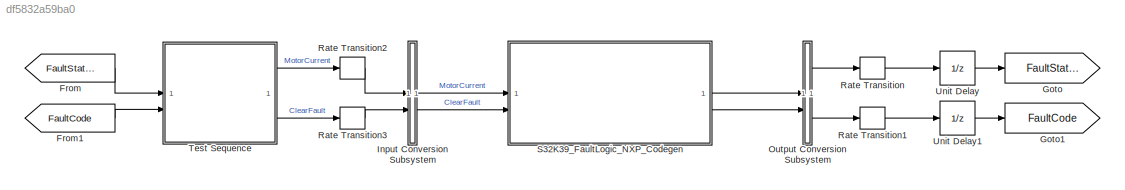
MODEL slx_df5832a59ba0
KIND model
CONFIG AbsTol = auto
CONFIG EnableMultiTasking = off
CONFIG FixedStep = 1
CONFIG MaxStep = auto
CONFIG MinStep = auto
CONFIG RelTol = 1e-3
CONFIG SampleTimeConstraint = Unconstrained
CONFIG SolverName = FixedStepAuto
CONFIG StartTime = 0.0
CONFIG StopTime = 15
BLOCK [From] From
  GotoTag = FaultStatus
BLOCK [From] From1
  GotoTag = FaultCode
BLOCK [Goto] Goto
  GotoTag = FaultStatus
BLOCK [Goto] Goto1
  GotoTag = FaultCode
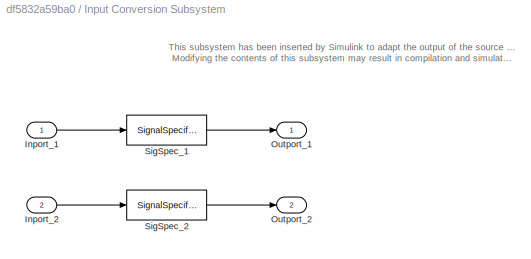
BLOCK [SubSystem] Input Conversion Subsystem
  AttributesFormatString = %<Description>
  Description = Signal spec.\nand routing
  Permissions = ReadOnly
  PermitHierarchicalResolution = ExplicitOnly
  Tag = __SLT_ICS__
  TreatAsGroupedWhenPropagatingVariantConditions = off
  UserDataPersistent = on
BLOCK [Inport] Input Conversion Subsystem/Inport_1
BLOCK [Inport] Input Conversion Subsystem/Inport_2
  Port = 2
BLOCK [Outport] Input Conversion Subsystem/Outport_1
BLOCK [Outport] Input Conversion Subsystem/Outport_2
  Port = 2
BLOCK [SignalSpecification] Input Conversion Subsystem/SigSpec_1
  Dimensions = [1]
  OutDataTypeStr = single
  SampleTime = [0, 0]
  SignalType = real
  VarSizeSig = No
BLOCK [SignalSpecification] Input Conversion Subsystem/SigSpec_2
  Dimensions = [1]
  OutDataTypeStr = boolean
  SampleTime = [0, 0]
  SignalType = real
  VarSizeSig = No
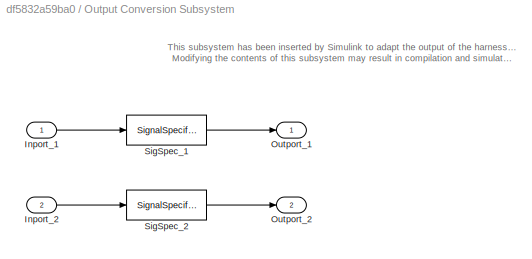
BLOCK [SubSystem] Output Conversion Subsystem
  AttributesFormatString = %<Description>
  Description = Signal spec.\nand routing
  Permissions = ReadOnly
  PermitHierarchicalResolution = ExplicitOnly
  Tag = __SLT_OCS__
  TreatAsGroupedWhenPropagatingVariantConditions = off
  UserDataPersistent = on
BLOCK [Inport] Output Conversion Subsystem/Inport_1
BLOCK [Inport] Output Conversion Subsystem/Inport_2
  Port = 2
BLOCK [Outport] Output Conversion Subsystem/Outport_1
BLOCK [Outport] Output Conversion Subsystem/Outport_2
  Port = 2
BLOCK [SignalSpecification] Output Conversion Subsystem/SigSpec_1
  Dimensions = [1]
  OutDataTypeStr = boolean
  SignalType = real
  VarSizeSig = No
BLOCK [SignalSpecification] Output Conversion Subsystem/SigSpec_2
  Dimensions = [1]
  OutDataTypeStr = int16
  SignalType = real
  VarSizeSig = No
BLOCK [RateTransition] Rate Transition
  OutPortSampleTimeOpt = Inherit
BLOCK [RateTransition] Rate Transition1
  OutPortSampleTimeOpt = Inherit
BLOCK [RateTransition] Rate Transition2
  OutPortSampleTimeOpt = Inherit
BLOCK [RateTransition] Rate Transition3
  OutPortSampleTimeOpt = Inherit
BLOCK [ModelReference] S32K39_FaultLogic_NXP_Codegen
  ModelNameDialog = S32K39_FaultLogic_NXP_Codegen
  ModelReferenceVersion = 1.27
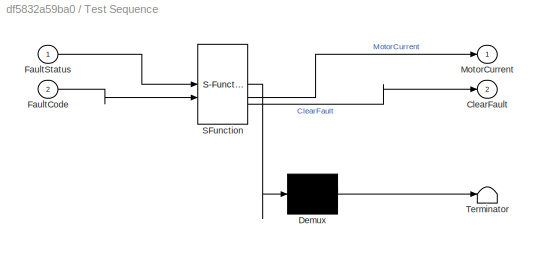
BLOCK [SubSystem] Test Sequence
  ErrorFcn = Stateflow.Translate.translate
  PermitHierarchicalResolution = ExplicitOnly
  SFBlockType = Test Sequence
  TreatAsAtomicUnit = on
BLOCK [Demux] Test Sequence/ Demux 
  Outputs = 1
BLOCK [S-Function] Test Sequence/ SFunction 
  EnableBusSupport = on
  FunctionName = sf_sfun
  Parameters = 4
  PortCounts = [2 3]
  SFcnIsStateOwnerBlock = off
  SFunctionDeploymentMode = off
  Tag = Stateflow S-Function 4
BLOCK [Terminator] Test Sequence/ Terminator 
BLOCK [Outport] Test Sequence/ClearFault
  Port = 2
BLOCK [Inport] Test Sequence/FaultCode
  Port = 2
BLOCK [Inport] Test Sequence/FaultStatus
BLOCK [Outport] Test Sequence/MotorCurrent
BLOCK [UnitDelay] Unit Delay
  HasFrameUpgradeWarning = on
  SampleTime = -1
BLOCK [UnitDelay] Unit Delay1
  HasFrameUpgradeWarning = on
  SampleTime = -1
ANNOTATION Input Conversion Subsystem: This subsystem has been inserted by Simulink to adapt the output of the source blocks to the interface required by the harnessed component. Modifying the contents of this subsystem may result in compilation and simulation failure.
ANNOTATION Output Conversion Subsystem: This subsystem has been inserted by Simulink to adapt the output of the harnessed component to the interface required by the sink blocks. Modifying the contents of this subsystem may result in compilation and simulation failure.
LINE From1:1 -> Test Sequence:2
LINE From:1 -> Test Sequence:1
LINE Input Conversion Subsystem/Inport_1:1 -> Input Conversion Subsystem/SigSpec_1:1
LINE Input Conversion Subsystem/Inport_2:1 -> Input Conversion Subsystem/SigSpec_2:1
LINE Input Conversion Subsystem/SigSpec_1:1 -> Input Conversion Subsystem/Outport_1:1
LINE Input Conversion Subsystem/SigSpec_2:1 -> Input Conversion Subsystem/Outport_2:1
LINE Input Conversion Subsystem:1 -> S32K39_FaultLogic_NXP_Codegen:1
LINE Input Conversion Subsystem:2 -> S32K39_FaultLogic_NXP_Codegen:2
LINE Output Conversion Subsystem/Inport_1:1 -> Output Conversion Subsystem/SigSpec_1:1
LINE Output Conversion Subsystem/Inport_2:1 -> Output Conversion Subsystem/SigSpec_2:1
LINE Output Conversion Subsystem/SigSpec_1:1 -> Output Conversion Subsystem/Outport_1:1
LINE Output Conversion Subsystem/SigSpec_2:1 -> Output Conversion Subsystem/Outport_2:1
LINE Output Conversion Subsystem:1 -> Rate Transition:1
LINE Output Conversion Subsystem:2 -> Rate Transition1:1
LINE Rate Transition1:1 -> Unit Delay1:1
LINE Rate Transition2:1 -> Input Conversion Subsystem:1
LINE Rate Transition3:1 -> Input Conversion Subsystem:2
LINE Rate Transition:1 -> Unit Delay:1
LINE S32K39_FaultLogic_NXP_Codegen:1 -> Output Conversion Subsystem:1
LINE S32K39_FaultLogic_NXP_Codegen:2 -> Output Conversion Subsystem:2
LINE Test Sequence:1 -> Rate Transition2:1
LINE Test Sequence:2 -> Rate Transition3:1
LINE Unit Delay1:1 -> Goto1:1
LINE Unit Delay:1 -> Goto:1
CHART Test Sequence states=31 transitions=31
  STATE_LABEL 'OverLoadNoFault'
  STATE_LABEL 'Init\nMotorCurrent = single(3.0);\nClearFault = false;'
  STATE_LABEL 'TriggerOverLoad\nMotorCurrent = single(5.8);'
  STATE_LABEL "CheckOverLoad\nverify(hasChangedTo(FaultCode, int16(1)), 'Req1:FaultCode','MotorCurrent is %d and FaultCode is %d',MotorCurrent,FaultCode)"
  STATE_LABEL 'OverLoadStaysActive'
  STATE_LABEL 'UnderOverLoadThreshold\nMotorCurrent = single(1.2);'
  STATE_LABEL "CheckOverLoadCleared\nverify(FaultCode == int16(0), 'Req1:FaultCode','MotorCurrent is %d and FaultCode is %d',MotorCurrent,FaultCode)\nverify(FaultStatus == false, 'Req1:FaultStatus','MotorCurrent is %d and FaultStatus is %d',MotorCurrent,FaultStatus)"
  STATE_LABEL 'LastStep'
  STATE_LABEL '[\nafter(1,sec)\n]'
  STATE_LABEL '[\net(sec)>0.5\n]'
  STATE_LABEL '[\nafter(2,sec)\n]'
  STATE_LABEL '[\nafter(1,sec)\n]'
  STATE_LABEL 'Init\nMotorCurrent = single(3.0);\nClearFault = false;'
  STATE_LABEL 'TriggerOverLoad\nMotorCurrent = single(5.8);'
  STATE_LABEL "CheckOverLoad\nverify(hasChangedTo(FaultCode, int16(1)), 'Req1:FaultCode','MotorCurrent is %d and FaultCode is %d',MotorCurrent,FaultCode)"
  STATE_LABEL 'OverLoadStaysActive'
  STATE_LABEL 'UnderOverLoadThreshold\nMotorCurrent = single(1.2);'
  STATE_LABEL "CheckOverLoadCleared\nverify(FaultCode == int16(0), 'Req1:FaultCode','MotorCurrent is %d and FaultCode is %d',MotorCurrent,FaultCode)\nverify(FaultStatus == false, 'Req1:FaultStatus','MotorCurrent is %d and FaultStatus is %d',MotorCurrent,FaultStatus)"
  STATE_LABEL 'LastStep'
  STATE_LABEL 'OverLoadFault'
  STATE_LABEL 'Init\nMotorCurrent = single(3);\nClearFault = false;'
  STATE_LABEL 'TriggerOverLoad\nMotorCurrent = single(5.6);'
  STATE_LABEL "CheckOverLoad\nverify(hasChangedTo(FaultCode, int16(1)), 'Req2:FaultCode','MotorCurrent is %d and FaultCode is %d',MotorCurrent,FaultCode)\n"
  STATE_LABEL 'OverLoadActiveMoreThan5Sec'
  STATE_LABEL "CheckOverLoadFault\nverify(hasChangedTo(FaultCode, int16(2)), 'Req2:FaultCode','MotorCurrent is %d and FaultCode is %d',MotorCurrent,FaultCode)\nverify(hasChangedTo(FaultStatus, true), 'Req2:FaultStatus','MotorCurrent is %d and FaultStatus is %d',MotorCurrent,FaultStatus)"
  STATE_LABEL 'ClearFault\nMotorCurrent = single(2);\nClearFault = true;'
  STATE_LABEL 'LastStep'
  STATE_LABEL '[\nafter(1, sec)\n]'
  STATE_LABEL '[\net(sec)>0.5\n]'
  STATE_LABEL '[\nafter(5,sec)\n]'
  STATE_LABEL '[\net(sec)>7.001\n]'
  STATE_LABEL 'Init\nMotorCurrent = single(3);\nClearFault = false;'
  STATE_LABEL 'TriggerOverLoad\nMotorCurrent = single(5.6);'
  STATE_LABEL "CheckOverLoad\nverify(hasChangedTo(FaultCode, int16(1)), 'Req2:FaultCode','MotorCurrent is %d and FaultCode is %d',MotorCurrent,FaultCode)\n"
  STATE_LABEL 'OverLoadActiveMoreThan5Sec'
  STATE_LABEL "CheckOverLoadFault\nverify(hasChangedTo(FaultCode, int16(2)), 'Req2:FaultCode','MotorCurrent is %d and FaultCode is %d',MotorCurrent,FaultCode)\nverify(hasChangedTo(FaultStatus, true), 'Req2:FaultStatus','MotorCurrent is %d and FaultStatus is %d',MotorCurrent,FaultStatus)"
  STATE_LABEL 'ClearFault\nMotorCurrent = single(2);\nClearFault = true;'
  STATE_LABEL 'LastStep'
  STATE_LABEL 'OverCurrentFault'
  STATE_LABEL 'Init\nMotorCurrent = single(8);\nClearFault = false;'
